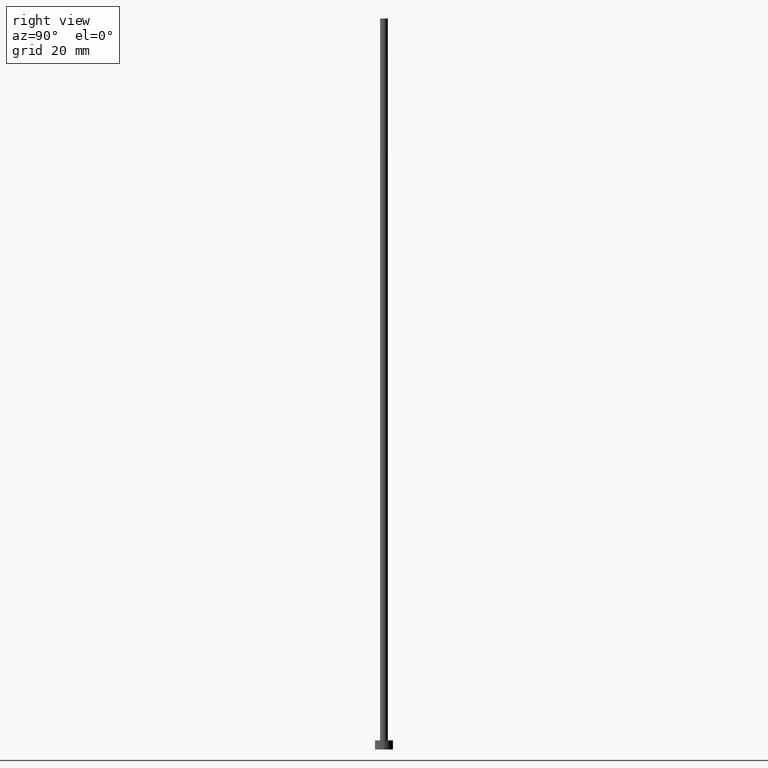
[diagram: clean part render]
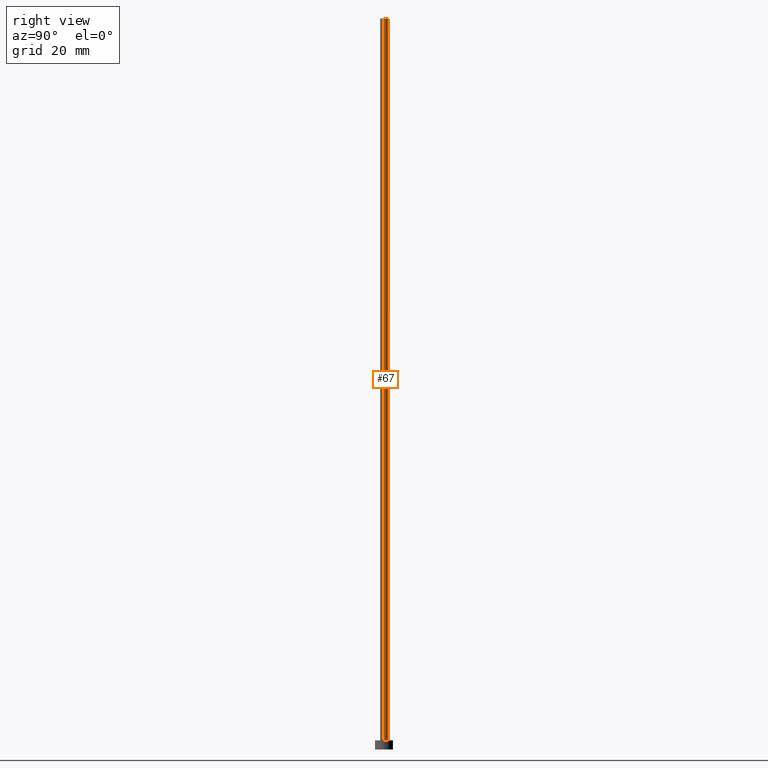
[diagram: same view with one face highlighted and labeled with its STEP entity id]
A machine part, right view. The second image highlights one B-rep face of the part: STEP entity #67.
In plain terms, the highlighted cylindrical surface (edge-blend (fillet) strip) has radius 0.65 mm, axis along (-0, -0, -1).
Its self-contained STEP definition (entity closure, byte-faithful):
#4 = FACE_OUTER_BOUND ( 'NONE', #85, .T. ) ;
#20 = DIRECTION ( 'NONE',  ( -1.000000000000000000, 0.000000000000000000, 0.000000000000000000 ) ) ;
#21 = DIRECTION ( 'NONE',  ( 1.000000000000000000, 0.000000000000000000, 0.000000000000000000 ) ) ;
#37 = AXIS2_PLACEMENT_3D ( 'NONE', #225, #242, #49 ) ;
#38 = VERTEX_POINT ( 'NONE', #197 ) ;
#42 = ORIENTED_EDGE ( 'NONE', *, *, #181, .F. ) ;
#45 = CARTESIAN_POINT ( 'NONE',  ( 0.000000000000000000, 0.000000000000000000, 120.5000000000000000 ) ) ;
#49 = DIRECTION ( 'NONE',  ( 1.000000000000000000, 0.000000000000000000, 0.000000000000000000 ) ) ;
#54 = EDGE_CURVE ( 'NONE', #118, #161, #72, .T. ) ;
#65 = ORIENTED_EDGE ( 'NONE', *, *, #54, .F. ) ;
#67 = ADVANCED_FACE ( 'NONE', ( #4 ), #204, .T. ) ;
#68 = DIRECTION ( 'NONE',  ( 0.000000000000000000, 0.000000000000000000, 1.000000000000000000 ) ) ;
#71 = AXIS2_PLACEMENT_3D ( 'NONE', #241, #68, #21 ) ;
#72 = LINE ( 'NONE', #190, #99 ) ;
#85 = EDGE_LOOP ( 'NONE', ( #42, #139, #221, #65 ) ) ;
#93 = LINE ( 'NONE', #226, #232 ) ;
#99 = VECTOR ( 'NONE', #245, 1000.000000000000000 ) ;
#107 = DIRECTION ( 'NONE',  ( -0.000000000000000000, -0.000000000000000000, -1.000000000000000000 ) ) ;
#118 = VERTEX_POINT ( 'NONE', #187 ) ;
#125 = CARTESIAN_POINT ( 'NONE',  ( 0.6500000000000000222, 7.960204194457795477E-17, 1.500000000000000000 ) ) ;
#139 = ORIENTED_EDGE ( 'NONE', *, *, #196, .T. ) ;
#161 = VERTEX_POINT ( 'NONE', #224 ) ;
#163 = VERTEX_POINT ( 'NONE', #125 ) ;
#178 = AXIS2_PLACEMENT_3D ( 'NONE', #45, #107, #20 ) ;
#180 = CIRCLE ( 'NONE', #71, 0.6500000000000000222 ) ;
#181 = EDGE_CURVE ( 'NONE', #38, #118, #180, .T. ) ;
#187 = CARTESIAN_POINT ( 'NONE',  ( -0.6500000000000000222, 0.000000000000000000, 120.5000000000000000 ) ) ;
#190 = CARTESIAN_POINT ( 'NONE',  ( -0.6500000000000000222, 0.000000000000000000, 120.5000000000000000 ) ) ;
#195 = EDGE_CURVE ( 'NONE', #163, #161, #239, .T. ) ;
#196 = EDGE_CURVE ( 'NONE', #38, #163, #93, .T. ) ;
#197 = CARTESIAN_POINT ( 'NONE',  ( 0.6500000000000000222, 7.960204194457795477E-17, 120.5000000000000000 ) ) ;
#204 = CYLINDRICAL_SURFACE ( 'NONE', #178, 0.6500000000000000222 ) ;
#221 = ORIENTED_EDGE ( 'NONE', *, *, #195, .T. ) ;
#224 = CARTESIAN_POINT ( 'NONE',  ( -0.6500000000000000222, 0.000000000000000000, 1.500000000000000000 ) ) ;
#225 = CARTESIAN_POINT ( 'NONE',  ( 0.000000000000000000, 0.000000000000000000, 1.500000000000000000 ) ) ;
#226 = CARTESIAN_POINT ( 'NONE',  ( 0.6500000000000000222, 7.960204194457795477E-17, 120.5000000000000000 ) ) ;
#232 = VECTOR ( 'NONE', #244, 1000.000000000000000 ) ;
#239 = CIRCLE ( 'NONE', #37, 0.6500000000000000222 ) ;
#241 = CARTESIAN_POINT ( 'NONE',  ( 0.000000000000000000, 0.000000000000000000, 120.5000000000000000 ) ) ;
#242 = DIRECTION ( 'NONE',  ( 0.000000000000000000, 0.000000000000000000, 1.000000000000000000 ) ) ;
#244 = DIRECTION ( 'NONE',  ( -0.000000000000000000, -0.000000000000000000, -1.000000000000000000 ) ) ;
#245 = DIRECTION ( 'NONE',  ( -0.000000000000000000, -0.000000000000000000, -1.000000000000000000 ) ) ;